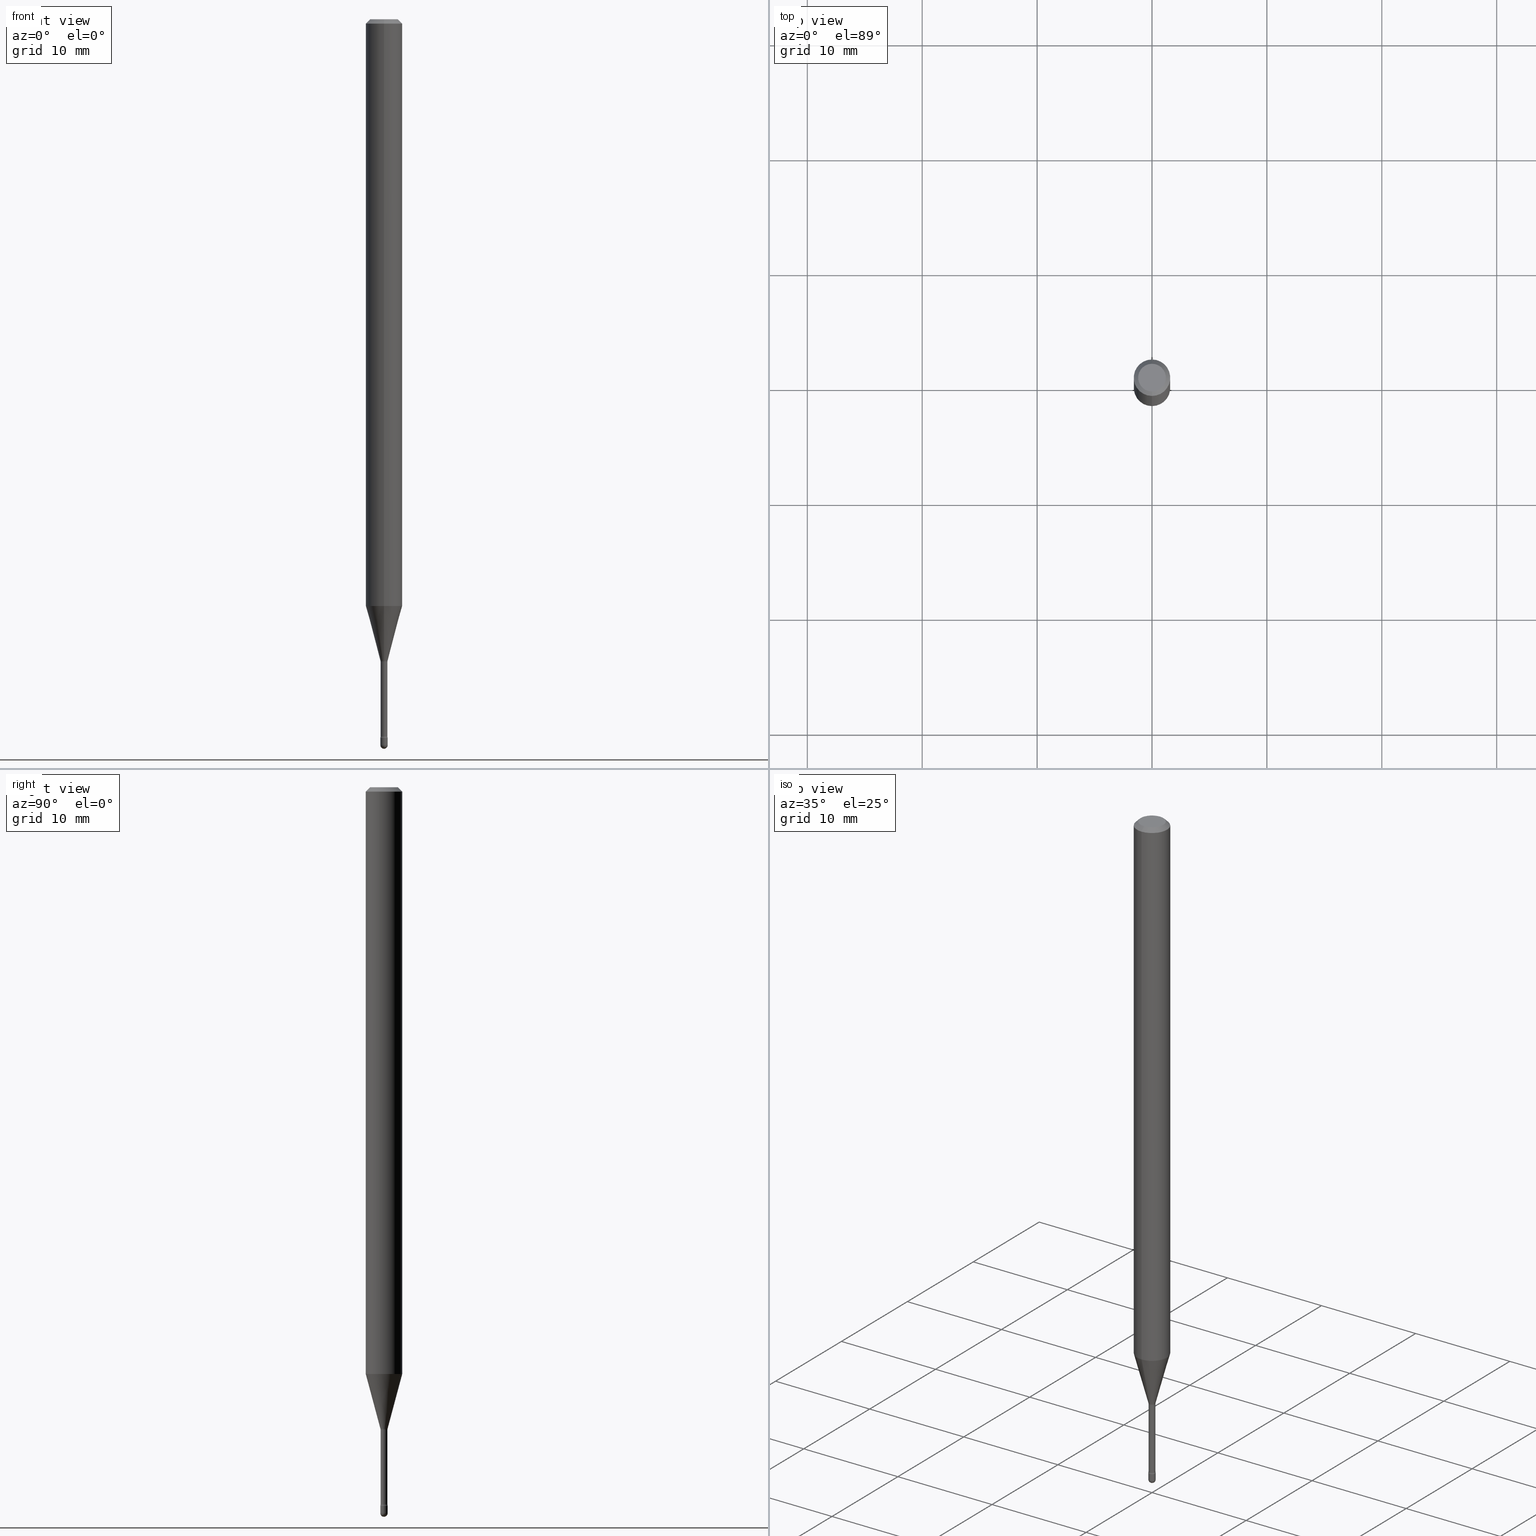
[diagram: canonical four-view strip — front | top / right | iso, engineering-drawing reading convention]
A machine part, canonical four-view strip (front | top / right | iso — engineering-drawing reading convention). The complete STEP part file that produces these views, byte-faithful:
ISO-10303-21;
HEADER;
FILE_DESCRIPTION (( 'STEP AP203' ),
    '1' );
FILE_NAME ('03889.STEP',
    '2024-04-09T20:58:36',
    ( '' ),
    ( '' ),
    'SwSTEP 2.0',
    'SolidWorks 2023',
    '' );
FILE_SCHEMA (( 'CONFIG_CONTROL_DESIGN' ));
ENDSEC;

DATA;
#1 = DIRECTION ( 'NONE',  ( -6.982962677686265922E-15, -1.000000000000000000, 3.491570948629923618E-15 ) ) ;
#2 = DIRECTION ( 'NONE',  ( -4.851104656540964275E-15, -0.7071067811865500152, -0.7071067811865450192 ) ) ;
#3 = CARTESIAN_POINT ( 'NONE',  ( 5.375229102395102351E-29, -7.674795921641710989E-15, -2.198092501787273001 ) ) ;
#4 = AXIS2_PLACEMENT_3D ( 'NONE', #314, #316, #226 ) ;
#5 = DIRECTION ( 'NONE',  ( -6.982962677686266711E-15, -1.000000000000000000, 3.491570948629923223E-15 ) ) ;
#6 = ORIENTED_EDGE ( 'NONE', *, *, #268, .T. ) ;
#7 = CYLINDRICAL_SURFACE ( 'NONE', #197, 0.01175000000000004340 ) ;
#8 = CARTESIAN_POINT ( 'NONE',  ( 6.114206494393579661E-29, -8.727937942858396428E-15, -2.500000000000000000 ) ) ;
#9 = EDGE_LOOP ( 'NONE', ( #137, #19, #102, #283 ) ) ;
#10 = DIRECTION ( 'NONE',  ( -2.445406232005474287E-29, 3.491570948629923223E-15, 1.000000000000000000 ) ) ;
#11 = VERTEX_POINT ( 'NONE', #191 ) ;
#12 = DIRECTION ( 'NONE',  ( 6.982962677686265922E-15, 1.000000000000000000, -3.483106191921935554E-15 ) ) ;
#13 = PERSON_AND_ORGANIZATION ( #154, #123 ) ;
#14 = AXIS2_PLACEMENT_3D ( 'NONE', #232, #323, #22 ) ;
#15 = VERTEX_POINT ( 'NONE', #67 ) ;
#16 = CIRCLE ( 'NONE', #150, 0.01249999999999996947 ) ;
#17 = CARTESIAN_POINT ( 'NONE',  ( 0.01250000000000000243, -8.728703347107835853E-17, 6.095220969744921493E-31 ) ) ;
#18 = APPLICATION_PROTOCOL_DEFINITION ( 'international standard', 'config_control_design', 1994, #78 ) ;
#19 = ORIENTED_EDGE ( 'NONE', *, *, #268, .F. ) ;
#20 = DIRECTION ( 'NONE',  ( -2.445406232005474287E-29, 3.491570948629923223E-15, 1.000000000000000000 ) ) ;
#21 = DATE_TIME_ROLE ( 'classification_date' ) ;
#22 = DIRECTION ( 'NONE',  ( -6.982962677686266711E-15, -1.000000000000000000, 3.491570948629923223E-15 ) ) ;
#23 = CARTESIAN_POINT ( 'NONE',  ( 4.440892098501121172E-16, 0.06249999999999995143, -0.01500000000000030129 ) ) ;
#24 = CC_DESIGN_DATE_AND_TIME_ASSIGNMENT ( #228, #21, ( #513 ) ) ;
#25 = CARTESIAN_POINT ( 'NONE',  ( -1.169113584055446105E-44, 1.669184350826100908E-30, 4.780733988912460139E-16 ) ) ;
#26 = TOROIDAL_SURFACE ( 'NONE', #158, 0.02674999999999999947, 0.01500000000000002373 ) ;
#27 = CARTESIAN_POINT ( 'NONE',  ( 3.316907271900976096E-16, 0.04749999999999999362, 3.181569158236497601E-17 ) ) ;
#28 = CIRCLE ( 'NONE', #159, 0.01250000000000000243 ) ;
#29 = EDGE_CURVE ( 'NONE', #141, #71, #548, .T. ) ;
#30 = SPHERICAL_SURFACE ( 'NONE', #254, 0.01249999999999996947 ) ;
#31 = AXIS2_PLACEMENT_3D ( 'NONE', #444, #307, #304 ) ;
#32 = CIRCLE ( 'NONE', #89, 0.01250000000000000243 ) ;
#33 = ORIENTED_EDGE ( 'NONE', *, *, #148, .F. ) ;
#34 = ORIENTED_EDGE ( 'NONE', *, *, #421, .T. ) ;
#35 = VERTEX_POINT ( 'NONE', #193 ) ;
#36 = DIRECTION ( 'NONE',  ( -1.807323732225325406E-15, -0.2588190451025175198, 0.9659258262890690894 ) ) ;
#37 = EDGE_CURVE ( 'NONE', #321, #559, #335, .T. ) ;
#38 = DIRECTION ( 'NONE',  ( 1.000000000000000000, -7.105427357601001070E-15, 4.926316605945468164E-29 ) ) ;
#39 = CIRCLE ( 'NONE', #31, 0.01249999999999996947 ) ;
#40 = MECHANICAL_CONTEXT ( 'NONE', #215, 'mechanical' ) ;
#41 = DIRECTION ( 'NONE',  ( -2.445406232005474287E-29, 3.491570948629923223E-15, 1.000000000000000000 ) ) ;
#42 = FACE_OUTER_BOUND ( 'NONE', #300, .T. ) ;
#43 = DIRECTION ( 'NONE',  ( 1.000000000000000000, 0.000000000000000000, 0.000000000000000000 ) ) ;
#44 = CARTESIAN_POINT ( 'NONE',  ( 5.384860654748895550E-29, -7.688153879032997927E-15, -2.201974787463810923 ) ) ;
#45 = CARTESIAN_POINT ( 'NONE',  ( 8.615330671097239935E-17, 0.01174999999999150856, -2.457316251501201698 ) ) ;
#46 = UNCERTAINTY_MEASURE_WITH_UNIT (LENGTH_MEASURE( 1.000000000000000082E-05 ), #430, 'distance_accuracy_value', 'NONE');
#47 = DIRECTION ( 'NONE',  ( -6.982962677686265922E-15, -1.000000000000000000, 4.370956789862821150E-15 ) ) ;
#48 = ORIENTED_EDGE ( 'NONE', *, *, #37, .F. ) ;
#49 = LINE ( 'NONE', #93, #385 ) ;
#50 = AXIS2_PLACEMENT_3D ( 'NONE', #115, #342, #516 ) ;
#51 = ORIENTED_EDGE ( 'NONE', *, *, #537, .F. ) ;
#52 = CONICAL_SURFACE ( 'NONE', #564, 0.01226111260566398187, 0.2617993877991495744 ) ;
#53 = DIRECTION ( 'NONE',  ( 1.000000000000000000, -6.982962677686294321E-15, 0.000000000000000000 ) ) ;
#54 = COORDINATED_UNIVERSAL_TIME_OFFSET ( 5, 0, .BEHIND. ) ;
#55 = EDGE_LOOP ( 'NONE', ( #6, #83, #259, #448 ) ) ;
#56 = FACE_OUTER_BOUND ( 'NONE', #224, .T. ) ;
#57 = ADVANCED_FACE ( 'NONE', ( #419 ), #423, .F. ) ;
#58 = COORDINATED_UNIVERSAL_TIME_OFFSET ( 5, 0, .BEHIND. ) ;
#59 = ORIENTED_EDGE ( 'NONE', *, *, #468, .F. ) ;
#60 = EDGE_LOOP ( 'NONE', ( #445, #520, #501, #374 ) ) ;
#61 = ORIENTED_EDGE ( 'NONE', *, *, #251, .F. ) ;
#62 = CIRCLE ( 'NONE', #112, 0.01250000000000000243 ) ;
#63 = CIRCLE ( 'NONE', #151, 0.06250000000000000000 ) ;
#64 = FACE_OUTER_BOUND ( 'NONE', #543, .T. ) ;
#65 = ADVANCED_FACE ( 'NONE', ( #111 ), #509, .T. ) ;
#66 = EDGE_CURVE ( 'NONE', #219, #35, #337, .T. ) ;
#67 = CARTESIAN_POINT ( 'NONE',  ( -4.364351673553912750E-16, -0.06250000000000005551, -0.01499999999999986587 ) ) ;
#68 = DIRECTION ( 'NONE',  ( -2.445406232005474287E-29, 3.491570948629923223E-15, 1.000000000000000000 ) ) ;
#69 = ADVANCED_FACE ( 'NONE', ( #152 ), #203, .T. ) ;
#70 = DIRECTION ( 'NONE',  ( 2.445406232005474287E-29, -3.491570948629923223E-15, -1.000000000000000000 ) ) ;
#71 = VERTEX_POINT ( 'NONE', #542 ) ;
#72 = DIRECTION ( 'NONE',  ( -6.982962677686265922E-15, -1.000000000000000000, 3.483106191921935554E-15 ) ) ;
#73 = AXIS2_PLACEMENT_3D ( 'NONE', #147, #70, #370 ) ;
#74 = CIRCLE ( 'NONE', #390, 0.04749999999999999362 ) ;
#75 = DIRECTION ( 'NONE',  ( -2.445406232005474287E-29, 3.491570948629923223E-15, 1.000000000000000000 ) ) ;
#76 = CC_DESIGN_APPROVAL ( #443, ( #513 ) ) ;
#77 = VERTEX_POINT ( 'NONE', #142 ) ;
#78 = APPLICATION_CONTEXT ( 'configuration controlled 3d designs of mechanical parts and assemblies' ) ;
#79 = ORIENTED_EDGE ( 'NONE', *, *, #301, .F. ) ;
#80 = AXIS2_PLACEMENT_3D ( 'NONE', #265, #493, #53 ) ;
#81 = ORIENTED_EDGE ( 'NONE', *, *, #251, .T. ) ;
#82 =( NAMED_UNIT ( * ) PLANE_ANGLE_UNIT ( ) SI_UNIT ( $, .RADIAN. ) );
#83 = ORIENTED_EDGE ( 'NONE', *, *, #301, .T. ) ;
#84 = LINE ( 'NONE', #256, #113 ) ;
#85 = LINE ( 'NONE', #353, #355 ) ;
#86 = FACE_OUTER_BOUND ( 'NONE', #60, .T. ) ;
#87 = AXIS2_PLACEMENT_3D ( 'NONE', #238, #378, #507 ) ;
#88 = AXIS2_PLACEMENT_3D ( 'NONE', #487, #349, #127 ) ;
#89 = AXIS2_PLACEMENT_3D ( 'NONE', #186, #289, #303 ) ;
#90 = DIRECTION ( 'NONE',  ( -2.445406232005474287E-29, 3.491570948629923223E-15, 1.000000000000000000 ) ) ;
#91 = FACE_OUTER_BOUND ( 'NONE', #533, .T. ) ;
#92 = ORIENTED_EDGE ( 'NONE', *, *, #242, .F. ) ;
#93 = CARTESIAN_POINT ( 'NONE',  ( 8.712044494296510252E-17, 0.01226111260565630572, -2.198092501787273001 ) ) ;
#94 = ORIENTED_EDGE ( 'NONE', *, *, #225, .F. ) ;
#95 = CARTESIAN_POINT ( 'NONE',  ( -8.204981146275976155E-17, -0.01175000000000768485, -2.201974787463810923 ) ) ;
#96 = CONICAL_SURFACE ( 'NONE', #460, 0.06250000000000000000, 0.7853981633974483900 ) ;
#97 = EDGE_CURVE ( 'NONE', #219, #190, #469, .T. ) ;
#98 = EDGE_LOOP ( 'NONE', ( #229, #416, #478, #132 ) ) ;
#99 = EDGE_CURVE ( 'NONE', #412, #498, #16, .T. ) ;
#100 = CARTESIAN_POINT ( 'NONE',  ( 6.009290239977978943E-29, -8.579673835752436969E-15, -2.457316251501201698 ) ) ;
#101 = VERTEX_POINT ( 'NONE', #333 ) ;
#102 = ORIENTED_EDGE ( 'NONE', *, *, #539, .T. ) ;
#103 = DIRECTION ( 'NONE',  ( -6.982962677686265922E-15, -1.000000000000000000, 3.491570948629922829E-15 ) ) ;
#104 = AXIS2_PLACEMENT_3D ( 'NONE', #135, #441, #273 ) ;
#105 =( GEOMETRIC_REPRESENTATION_CONTEXT ( 3 ) GLOBAL_UNCERTAINTY_ASSIGNED_CONTEXT ( ( #46 ) ) GLOBAL_UNIT_ASSIGNED_CONTEXT ( ( #430, #82, #261 ) ) REPRESENTATION_CONTEXT ( 'NONE', 'WORKASPACE' ) );
#106 = DIRECTION ( 'NONE',  ( -2.445468806185136597E-29, 3.491481338843145583E-15, 1.000000000000000000 ) ) ;
#107 = PERSON_AND_ORGANIZATION_ROLE ( 'design_supplier' ) ;
#108 = DIRECTION ( 'NONE',  ( -2.445406232005474287E-29, 3.491570948629923223E-15, 1.000000000000000000 ) ) ;
#109 =( LENGTH_UNIT ( ) NAMED_UNIT ( * ) SI_UNIT ( $, .METRE. ) );
#110 = CARTESIAN_POINT ( 'NONE',  ( 6.083103655385528181E-29, -8.685059830372324987E-15, -2.487500000000000266 ) ) ;
#111 = FACE_OUTER_BOUND ( 'NONE', #250, .T. ) ;
#112 = AXIS2_PLACEMENT_3D ( 'NONE', #363, #211, #184 ) ;
#113 = VECTOR ( 'NONE', #122, 39.37007874015748143 ) ;
#114 = CARTESIAN_POINT ( 'NONE',  ( 4.364351673553919652E-16, 0.06249999999999995143, -0.01500000000000030129 ) ) ;
#115 = CARTESIAN_POINT ( 'NONE',  ( 0.000000000000000000, 0.000000000000000000, 0.000000000000000000 ) ) ;
#116 = EDGE_LOOP ( 'NONE', ( #315, #354, #124, #51 ) ) ;
#117 = DATE_AND_TIME ( #163, #425 ) ;
#118 = ORIENTED_EDGE ( 'NONE', *, *, #334, .F. ) ;
#119 = DESIGN_CONTEXT ( 'detailed design', #78, 'design' ) ;
#120 = CC_DESIGN_PERSON_AND_ORGANIZATION_ASSIGNMENT ( #373, #418, ( #513 ) ) ;
#121 = AXIS2_PLACEMENT_3D ( 'NONE', #133, #538, #173 ) ;
#122 = DIRECTION ( 'NONE',  ( -2.445406232005474567E-29, 3.491570948629923618E-15, 1.000000000000000000 ) ) ;
#123 = ORGANIZATION ( 'UNSPECIFIED', 'UNSPECIFIED', '' ) ;
#124 = ORIENTED_EDGE ( 'NONE', *, *, #202, .F. ) ;
#125 = ADVANCED_FACE ( 'NONE', ( #240 ), #555, .T. ) ;
#126 = ORIENTED_EDGE ( 'NONE', *, *, #29, .T. ) ;
#127 = DIRECTION ( 'NONE',  ( -6.982962677686265133E-15, -1.000000000000000000, 3.491570948629924801E-15 ) ) ;
#128 = DIRECTION ( 'NONE',  ( -6.982962677686265922E-15, -1.000000000000000000, 0.000000000000000000 ) ) ;
#129 = CARTESIAN_POINT ( 'NONE',  ( -4.287811248607203282E-16, -0.06250000000000005551, -0.01499999999999986587 ) ) ;
#130 = AXIS2_PLACEMENT_3D ( 'NONE', #396, #530, #278 ) ;
#131 = AXIS2_PLACEMENT_3D ( 'NONE', #175, #41, #47 ) ;
#132 = ORIENTED_EDGE ( 'NONE', *, *, #421, .F. ) ;
#133 = CARTESIAN_POINT ( 'NONE',  ( 3.668109348008231504E-31, -5.237356422944913579E-17, -0.01500000000000008271 ) ) ;
#134 = ORIENTED_EDGE ( 'NONE', *, *, #405, .F. ) ;
#135 = CARTESIAN_POINT ( 'NONE',  ( 5.375229102395102351E-29, -7.674795921641710989E-15, -2.198092501787273001 ) ) ;
#136 = ADVANCED_FACE ( 'NONE', ( #64 ), #422, .F. ) ;
#137 = ORIENTED_EDGE ( 'NONE', *, *, #200, .F. ) ;
#138 = DIRECTION ( 'NONE',  ( -2.438088387897960049E-29, 3.491481338843145188E-15, 1.000000000000000000 ) ) ;
#139 = CIRCLE ( 'NONE', #104, 0.01226111260566398187 ) ;
#140 = CIRCLE ( 'NONE', #177, 0.01250000000000000243 ) ;
#141 = VERTEX_POINT ( 'NONE', #291 ) ;
#142 = CARTESIAN_POINT ( 'NONE',  ( 2.656048273965385606E-16, 0.01226111260565630572, -2.198092501787273001 ) ) ;
#143 = COORDINATED_UNIVERSAL_TIME_OFFSET ( 5, 0, .BEHIND. ) ;
#144 = EDGE_LOOP ( 'NONE', ( #237, #526, #34, #384, #432 ) ) ;
#145 = EDGE_CURVE ( 'NONE', #326, #219, #389, .T. ) ;
#146 = DIRECTION ( 'NONE',  ( -2.445468806185136877E-29, 3.491481338843145188E-15, 1.000000000000000000 ) ) ;
#147 = CARTESIAN_POINT ( 'NONE',  ( 3.668109348008231504E-31, -5.237356422944913579E-17, -0.01500000000000008271 ) ) ;
#148 = EDGE_CURVE ( 'NONE', #560, #343, #502, .T. ) ;
#149 = PERSON_AND_ORGANIZATION ( #154, #123 ) ;
#150 = AXIS2_PLACEMENT_3D ( 'NONE', #504, #375, #290 ) ;
#151 = AXIS2_PLACEMENT_3D ( 'NONE', #479, #344, #72 ) ;
#152 = FACE_OUTER_BOUND ( 'NONE', #562, .T. ) ;
#153 = DIRECTION ( 'NONE',  ( 6.982962677686265922E-15, 1.000000000000000000, -3.491570948629923618E-15 ) ) ;
#154 = PERSON ( 'UNSPECIFIED', 'UNSPECIFIED', 'UNSPECIFIED', ('UNSPECIFIED'), ('UNSPECIFIED'), ('UNSPECIFIED') ) ;
#155 = ORIENTED_EDGE ( 'NONE', *, *, #66, .T. ) ;
#156 = EDGE_CURVE ( 'NONE', #388, #35, #168, .T. ) ;
#157 = EDGE_CURVE ( 'NONE', #35, #388, #470, .T. ) ;
#158 = AXIS2_PLACEMENT_3D ( 'NONE', #287, #160, #519 ) ;
#159 = AXIS2_PLACEMENT_3D ( 'NONE', #408, #447, #236 ) ;
#160 = DIRECTION ( 'NONE',  ( -2.445406232005474287E-29, 3.491570948629923223E-15, 1.000000000000000000 ) ) ;
#161 = ORIENTED_EDGE ( 'NONE', *, *, #482, .F. ) ;
#162 = ADVANCED_FACE ( 'NONE', ( #377 ), #26, .F. ) ;
#163 = CALENDAR_DATE ( 2024, 9, 4 ) ;
#164 = ORIENTED_EDGE ( 'NONE', *, *, #404, .T. ) ;
#165 = APPROVAL_DATE_TIME ( #117, #510 ) ;
#166 = ORIENTED_EDGE ( 'NONE', *, *, #431, .F. ) ;
#167 = ADVANCED_FACE ( 'NONE', ( #547 ), #260, .T. ) ;
#168 = CIRCLE ( 'NONE', #234, 0.01250000000000000069 ) ;
#169 = DIRECTION ( 'NONE',  ( -2.445468806185136597E-29, 3.491481338843145583E-15, 1.000000000000000000 ) ) ;
#170 = AXIS2_PLACEMENT_3D ( 'NONE', #351, #266, #43 ) ;
#171 = DIRECTION ( 'NONE',  ( -2.445406232005474287E-29, 3.491570948629923223E-15, 1.000000000000000000 ) ) ;
#172 = CARTESIAN_POINT ( 'NONE',  ( -4.364351673553916201E-16, -0.06250000000000000000, 6.962965831806161907E-16 ) ) ;
#173 = DIRECTION ( 'NONE',  ( -6.982962677686265922E-15, -1.000000000000000000, 3.483106191921935554E-15 ) ) ;
#174 = EDGE_CURVE ( 'NONE', #204, #343, #379, .T. ) ;
#175 = CARTESIAN_POINT ( 'NONE',  ( 4.916729910035301383E-29, -7.020147037926026338E-15, -2.010598421515879419 ) ) ;
#176 = CARTESIAN_POINT ( 'NONE',  ( 1.900701818158805864E-16, 0.02674999999999231118, -2.201974787463810923 ) ) ;
#177 = AXIS2_PLACEMENT_3D ( 'NONE', #110, #106, #512 ) ;
#178 = CALENDAR_DATE ( 2024, 9, 4 ) ;
#179 = FACE_OUTER_BOUND ( 'NONE', #187, .T. ) ;
#180 = ORIENTED_EDGE ( 'NONE', *, *, #198, .T. ) ;
#181 = CARTESIAN_POINT ( 'NONE',  ( 5.384722867982933466E-29, -7.688351197524191767E-15, -2.201974787463810923 ) ) ;
#182 = APPROVAL_DATE_TIME ( #235, #484 ) ;
#183 = ORIENTED_EDGE ( 'NONE', *, *, #556, .T. ) ;
#184 = DIRECTION ( 'NONE',  ( 1.000000000000000000, -6.982962677686292743E-15, 0.000000000000000000 ) ) ;
#185 = APPROVAL_ROLE ( '' ) ;
#186 = CARTESIAN_POINT ( 'NONE',  ( 6.083103655385528181E-29, -8.685059830372324987E-15, -2.487500000000000266 ) ) ;
#187 = EDGE_LOOP ( 'NONE', ( #161, #475, #341, #517 ) ) ;
#188 = DIRECTION ( 'NONE',  ( -2.445406232005474567E-29, 3.491570948629923618E-15, 1.000000000000000000 ) ) ;
#189 = CIRCLE ( 'NONE', #121, 0.06250000000000000000 ) ;
#190 = VERTEX_POINT ( 'NONE', #95 ) ;
#191 = CARTESIAN_POINT ( 'NONE',  ( 8.348877145187204594E-17, 0.01174999999999231000, -2.201974787463810923 ) ) ;
#192 = DIRECTION ( 'NONE',  ( -6.982962677686265133E-15, -1.000000000000000000, 0.000000000000000000 ) ) ;
#193 = CARTESIAN_POINT ( 'NONE',  ( -8.728703347101793672E-17, -0.01250000000000857023, -2.462000000000000188 ) ) ;
#194 = CARTESIAN_POINT ( 'NONE',  ( 0.01250000000000000243, -8.727830476773153796E-15, -2.487500000000000266 ) ) ;
#195 = VECTOR ( 'NONE', #188, 39.37007874015748143 ) ;
#196 = CARTESIAN_POINT ( 'NONE',  ( -8.881784196995158866E-17, -0.01250000000000867084, -2.487500000000000266 ) ) ;
#197 = AXIS2_PLACEMENT_3D ( 'NONE', #450, #214, #395 ) ;
#198 = EDGE_CURVE ( 'NONE', #11, #190, #346, .T. ) ;
#199 = CARTESIAN_POINT ( 'NONE',  ( 6.009136475429369781E-29, -8.579894035337778343E-15, -2.457316251501201698 ) ) ;
#200 = EDGE_CURVE ( 'NONE', #77, #11, #558, .T. ) ;
#201 = DIRECTION ( 'NONE',  ( -1.000000000000000000, 6.982962677686265922E-15, -4.883557194083112340E-29 ) ) ;
#202 = EDGE_CURVE ( 'NONE', #387, #437, #62, .T. ) ;
#203 = CONICAL_SURFACE ( 'NONE', #73, 0.06250000000000000000, 0.7853981633974483900 ) ;
#204 = VERTEX_POINT ( 'NONE', #361 ) ;
#205 = ORIENTED_EDGE ( 'NONE', *, *, #556, .F. ) ;
#206 = CC_DESIGN_DATE_AND_TIME_ASSIGNMENT ( #366, #365, ( #284 ) ) ;
#207 = ORIENTED_EDGE ( 'NONE', *, *, #537, .T. ) ;
#208 = FACE_OUTER_BOUND ( 'NONE', #9, .T. ) ;
#209 = APPROVAL_STATUS ( 'not_yet_approved' ) ;
#210 = AXIS2_PLACEMENT_3D ( 'NONE', #356, #138, #352 ) ;
#211 = DIRECTION ( 'NONE',  ( -2.445468806185136597E-29, 3.491481338843145583E-15, 1.000000000000000000 ) ) ;
#212 = CARTESIAN_POINT ( 'NONE',  ( 2.023097840712358437E-45, -2.889451115726042936E-31, -8.274277560667344986E-17 ) ) ;
#213 = CC_DESIGN_PERSON_AND_ORGANIZATION_ASSIGNMENT ( #434, #227, ( #284 ) ) ;
#214 = DIRECTION ( 'NONE',  ( -2.445406232005474287E-29, 3.491570948629923223E-15, 1.000000000000000000 ) ) ;
#215 = APPLICATION_CONTEXT ( 'configuration controlled 3d designs of mechanical parts and assemblies' ) ;
#216 = APPLICATION_PROTOCOL_DEFINITION ( 'international standard', 'config_control_design', 1994, #215 ) ;
#217 = LINE ( 'NONE', #129, #338 ) ;
#218 = SPHERICAL_SURFACE ( 'NONE', #130, 0.01249999999999996947 ) ;
#219 = VERTEX_POINT ( 'NONE', #486 ) ;
#220 = DIRECTION ( 'NONE',  ( 7.105427357601000281E-15, 1.000000000000000000, 0.000000000000000000 ) ) ;
#221 = DIRECTION ( 'NONE',  ( -1.000000000000000000, 6.982962677686266711E-15, -4.883557194083112901E-29 ) ) ;
#222 = AXIS2_PLACEMENT_3D ( 'NONE', #100, #400, #525 ) ;
#223 = CIRCLE ( 'NONE', #276, 0.01174999999999999656 ) ;
#224 = EDGE_LOOP ( 'NONE', ( #386, #399, #456, #205 ) ) ;
#225 = EDGE_CURVE ( 'NONE', #15, #559, #189, .T. ) ;
#226 = DIRECTION ( 'NONE',  ( -6.982962677686265922E-15, -1.000000000000000000, 0.000000000000000000 ) ) ;
#227 = PERSON_AND_ORGANIZATION_ROLE ( 'creator' ) ;
#228 = DATE_AND_TIME ( #535, #247 ) ;
#229 = ORIENTED_EDGE ( 'NONE', *, *, #383, .F. ) ;
#230 = CARTESIAN_POINT ( 'NONE',  ( 3.668109348008231504E-31, -5.237356422944913579E-17, -0.01500000000000008271 ) ) ;
#231 = ORIENTED_EDGE ( 'NONE', *, *, #406, .T. ) ;
#232 = CARTESIAN_POINT ( 'NONE',  ( 2.023097840712358437E-45, -2.889451115726042936E-31, -8.274277560667344986E-17 ) ) ;
#233 = AXIS2_PLACEMENT_3D ( 'NONE', #550, #457, #103 ) ;
#234 = AXIS2_PLACEMENT_3D ( 'NONE', #285, #327, #461 ) ;
#235 = DATE_AND_TIME ( #500, #339 ) ;
#236 = DIRECTION ( 'NONE',  ( 1.000000000000000000, -6.982962677686292743E-15, 0.000000000000000000 ) ) ;
#237 = ORIENTED_EDGE ( 'NONE', *, *, #397, .F. ) ;
#238 = CARTESIAN_POINT ( 'NONE',  ( -1.867942516280477817E-16, -0.02675000000000861411, -2.457316251501201698 ) ) ;
#239 = PERSON_AND_ORGANIZATION_ROLE ( 'creator' ) ;
#240 = FACE_OUTER_BOUND ( 'NONE', #144, .T. ) ;
#241 = DIRECTION ( 'NONE',  ( 4.937700262164548042E-15, 0.7071067811865451302, -0.7071067811865499042 ) ) ;
#242 = EDGE_CURVE ( 'NONE', #219, #326, #563, .T. ) ;
#243 = ADVANCED_FACE ( 'NONE', ( #495 ), #312, .T. ) ;
#244 = CARTESIAN_POINT ( 'NONE',  ( 0.000000000000000000, 0.000000000000000000, 0.000000000000000000 ) ) ;
#245 = AXIS2_PLACEMENT_3D ( 'NONE', #499, #248, #381 ) ;
#246 = AXIS2_PLACEMENT_3D ( 'NONE', #3, #267, #534 ) ;
#247 = LOCAL_TIME ( 16, 58, 36.00000000000000000, #54 ) ;
#248 = DIRECTION ( 'NONE',  ( -2.445406232005474287E-29, 3.491570948629923223E-15, 1.000000000000000000 ) ) ;
#249 = DIRECTION ( 'NONE',  ( -6.982962677686267499E-15, -1.000000000000000000, 0.000000000000000000 ) ) ;
#250 = EDGE_LOOP ( 'NONE', ( #48, #270, #280, #166 ) ) ;
#251 = EDGE_CURVE ( 'NONE', #77, #362, #139, .T. ) ;
#252 = AXIS2_PLACEMENT_3D ( 'NONE', #263, #90, #310 ) ;
#253 = ADVANCED_FACE ( 'NONE', ( #42 ), #481, .F. ) ;
#254 = AXIS2_PLACEMENT_3D ( 'NONE', #382, #221, #452 ) ;
#255 = CC_DESIGN_PERSON_AND_ORGANIZATION_ASSIGNMENT ( #415, #358, ( #369 ) ) ;
#256 = CARTESIAN_POINT ( 'NONE',  ( 8.348877145181206786E-17, 0.01175000000000004340, 4.370474402448442708E-16 ) ) ;
#257 = ORIENTED_EDGE ( 'NONE', *, *, #406, .F. ) ;
#258 = LINE ( 'NONE', #438, #317 ) ;
#259 = ORIENTED_EDGE ( 'NONE', *, *, #404, .F. ) ;
#260 = CYLINDRICAL_SURFACE ( 'NONE', #50, 0.01250000000000000243 ) ;
#261 =( NAMED_UNIT ( * ) SI_UNIT ( $, .STERADIAN. ) SOLID_ANGLE_UNIT ( ) );
#262 = EDGE_CURVE ( 'NONE', #101, #15, #391, .T. ) ;
#263 = CARTESIAN_POINT ( 'NONE',  ( 4.916729910035301383E-29, -7.020147037926026338E-15, -2.010598421515879419 ) ) ;
#264 = AXIS2_PLACEMENT_3D ( 'NONE', #176, #38, #220 ) ;
#265 = CARTESIAN_POINT ( 'NONE',  ( 6.020744200827806517E-29, -8.596027056231825938E-15, -2.462000000000000188 ) ) ;
#266 = DIRECTION ( 'NONE',  ( 0.000000000000000000, 0.000000000000000000, 1.000000000000000000 ) ) ;
#267 = DIRECTION ( 'NONE',  ( -2.445406232005474287E-29, 3.491570948629923223E-15, 1.000000000000000000 ) ) ;
#268 = EDGE_CURVE ( 'NONE', #362, #77, #541, .T. ) ;
#269 = PERSON_AND_ORGANIZATION ( #154, #123 ) ;
#270 = ORIENTED_EDGE ( 'NONE', *, *, #405, .T. ) ;
#271 = DIRECTION ( 'NONE',  ( -2.445406232005473726E-29, 3.491570948629923618E-15, 1.000000000000000000 ) ) ;
#272 = EDGE_LOOP ( 'NONE', ( #296, #409, #360, #561 ) ) ;
#273 = DIRECTION ( 'NONE',  ( -6.982962677686265133E-15, -1.000000000000000000, 0.000000000000000000 ) ) ;
#274 = ADVANCED_FACE ( 'NONE', ( #350 ), #292, .F. ) ;
#275 = VECTOR ( 'NONE', #146, 39.37007874015748143 ) ;
#276 = AXIS2_PLACEMENT_3D ( 'NONE', #553, #392, #299 ) ;
#277 = ORIENTED_EDGE ( 'NONE', *, *, #348, .T. ) ;
#278 = DIRECTION ( 'NONE',  ( 6.982962677686266711E-15, 1.000000000000000000, 0.000000000000000000 ) ) ;
#279 = APPROVAL_STATUS ( 'not_yet_approved' ) ;
#280 = ORIENTED_EDGE ( 'NONE', *, *, #262, .T. ) ;
#281 = DIRECTION ( 'NONE',  ( 1.000000000000000000, -6.982962677686267499E-15, 4.876176775795936353E-29 ) ) ;
#282 = APPROVAL_STATUS ( 'not_yet_approved' ) ;
#283 = ORIENTED_EDGE ( 'NONE', *, *, #497, .T. ) ;
#284 = PRODUCT_DEFINITION ( 'UNKNOWN', '', #462, #119 ) ;
#285 = CARTESIAN_POINT ( 'NONE',  ( 6.020590143197478927E-29, -8.596247675526871157E-15, -2.462000000000000188 ) ) ;
#286 = AXIS2_PLACEMENT_3D ( 'NONE', #417, #20, #192 ) ;
#287 = CARTESIAN_POINT ( 'NONE',  ( 5.384860654748895550E-29, -7.688153879032997927E-15, -2.201974787463810923 ) ) ;
#288 = SHAPE_DEFINITION_REPRESENTATION ( #429, #551 ) ;
#289 = DIRECTION ( 'NONE',  ( -2.445468806185136597E-29, 3.491481338843145583E-15, 1.000000000000000000 ) ) ;
#290 = DIRECTION ( 'NONE',  ( 6.982962677686265922E-15, 1.000000000000000000, 0.000000000000000000 ) ) ;
#291 = CARTESIAN_POINT ( 'NONE',  ( -3.773273898774340269E-16, -0.04749999999999999362, 8.310684445324788698E-17 ) ) ;
#292 = TOROIDAL_SURFACE ( 'NONE', #222, 0.02675000000000003417, 0.01499999999999994393 ) ;
#293 = AXIS2_PLACEMENT_3D ( 'NONE', #25, #108, #466 ) ;
#294 = ORIENTED_EDGE ( 'NONE', *, *, #539, .F. ) ;
#295 = CC_DESIGN_PERSON_AND_ORGANIZATION_ASSIGNMENT ( #13, #239, ( #462 ) ) ;
#296 = ORIENTED_EDGE ( 'NONE', *, *, #145, .F. ) ;
#297 = AXIS2_PLACEMENT_3D ( 'NONE', #181, #439, #128 ) ;
#298 = CIRCLE ( 'NONE', #131, 0.06250000000000000000 ) ;
#299 = DIRECTION ( 'NONE',  ( -6.982962677686265922E-15, -1.000000000000000000, 0.000000000000000000 ) ) ;
#300 = EDGE_LOOP ( 'NONE', ( #402, #453 ) ) ;
#301 = EDGE_CURVE ( 'NONE', #77, #321, #49, .T. ) ;
#302 = DIRECTION ( 'NONE',  ( 1.000000000000000000, -7.105427357601001070E-15, 4.926316605945468164E-29 ) ) ;
#303 = DIRECTION ( 'NONE',  ( 1.000000000000000000, -6.982962677686292743E-15, 0.000000000000000000 ) ) ;
#304 = DIRECTION ( 'NONE',  ( -7.105427357601001070E-15, -1.000000000000000000, 0.000000000000000000 ) ) ;
#305 = APPROVAL_ROLE ( '' ) ;
#306 = DIRECTION ( 'NONE',  ( 1.839019923739595582E-15, 0.2588190451025242922, 0.9659258262890673130 ) ) ;
#307 = DIRECTION ( 'NONE',  ( -1.000000000000000000, 7.105427357601001070E-15, -4.926315508542082329E-29 ) ) ;
#308 = CARTESIAN_POINT ( 'NONE',  ( 4.440892098501117228E-16, 0.06249999999999298478, -2.010598421515879863 ) ) ;
#309 = ADVANCED_FACE ( 'NONE', ( #86 ), #7, .T. ) ;
#310 = DIRECTION ( 'NONE',  ( -6.982962677686265922E-15, -1.000000000000000000, 4.370956789862821150E-15 ) ) ;
#311 = ORIENTED_EDGE ( 'NONE', *, *, #157, .T. ) ;
#312 = PLANE ( 'NONE',  #210 ) ;
#313 = ORIENTED_EDGE ( 'NONE', *, *, #397, .T. ) ;
#314 = CARTESIAN_POINT ( 'NONE',  ( 6.009136475429369781E-29, -8.579894035337778343E-15, -2.457316251501201698 ) ) ;
#315 = ORIENTED_EDGE ( 'NONE', *, *, #99, .F. ) ;
#316 = DIRECTION ( 'NONE',  ( -2.445406232005474287E-29, 3.491570948629923223E-15, 1.000000000000000000 ) ) ;
#317 = VECTOR ( 'NONE', #36, 39.37007874015748854 ) ;
#318 = TOROIDAL_SURFACE ( 'NONE', #528, 0.02674999999999999947, 0.01500000000000002373 ) ;
#319 = APPROVAL_PERSON_ORGANIZATION ( #320, #443, #455 ) ;
#320 = PERSON_AND_ORGANIZATION ( #154, #123 ) ;
#321 = VERTEX_POINT ( 'NONE', #308 ) ;
#322 = ADVANCED_FACE ( 'NONE', ( #91 ), #549, .T. ) ;
#323 = DIRECTION ( 'NONE',  ( -2.445406232005474287E-29, 3.491570948629923223E-15, 1.000000000000000000 ) ) ;
#324 = ADVANCED_FACE ( 'NONE', ( #489 ), #218, .T. ) ;
#325 = CALENDAR_DATE ( 2024, 9, 4 ) ;
#326 = VERTEX_POINT ( 'NONE', #45 ) ;
#327 = DIRECTION ( 'NONE',  ( -2.445406232005474287E-29, 3.491570948629923223E-15, 1.000000000000000000 ) ) ;
#328 = PERSON_AND_ORGANIZATION ( #154, #123 ) ;
#329 = ADVANCED_FACE ( 'NONE', ( #56 ), #96, .T. ) ;
#330 = CARTESIAN_POINT ( 'NONE',  ( -8.204981146281392178E-17, -0.01175000000000004340, 5.190993575376478064E-16 ) ) ;
#331 = FACE_OUTER_BOUND ( 'NONE', #55, .T. ) ;
#332 = AXIS2_PLACEMENT_3D ( 'NONE', #420, #169, #474 ) ;
#333 = CARTESIAN_POINT ( 'NONE',  ( -4.364351673553424642E-16, -0.06250000000000702216, -2.010598421515879419 ) ) ;
#334 = EDGE_CURVE ( 'NONE', #326, #388, #485, .T. ) ;
#335 = LINE ( 'NONE', #467, #195 ) ;
#336 = CARTESIAN_POINT ( 'NONE',  ( 5.375229102395102351E-29, -7.674795921641710989E-15, -2.198092501787273001 ) ) ;
#337 = CIRCLE ( 'NONE', #87, 0.01499999999999994740 ) ;
#338 = VECTOR ( 'NONE', #2, 39.37007874015748143 ) ;
#339 = LOCAL_TIME ( 16, 58, 36.00000000000000000, #58 ) ;
#340 = EDGE_CURVE ( 'NONE', #141, #15, #217, .T. ) ;
#341 = ORIENTED_EDGE ( 'NONE', *, *, #97, .T. ) ;
#342 = DIRECTION ( 'NONE',  ( -2.445468806185136597E-29, 3.491481338843145583E-15, 1.000000000000000000 ) ) ;
#343 = VERTEX_POINT ( 'NONE', #359 ) ;
#344 = DIRECTION ( 'NONE',  ( -2.445406232005474287E-29, 3.491570948629923223E-15, 1.000000000000000000 ) ) ;
#345 = ORIENTED_EDGE ( 'NONE', *, *, #468, .T. ) ;
#346 = CIRCLE ( 'NONE', #297, 0.01174999999999999656 ) ;
#347 = CC_DESIGN_APPROVAL ( #484, ( #462 ) ) ;
#348 = EDGE_CURVE ( 'NONE', #362, #101, #258, .T. ) ;
#349 = DIRECTION ( 'NONE',  ( -2.445406232005474287E-29, 3.491570948629923223E-15, 1.000000000000000000 ) ) ;
#350 = FACE_OUTER_BOUND ( 'NONE', #488, .T. ) ;
#351 = CARTESIAN_POINT ( 'NONE',  ( 0.000000000000000000, 0.000000000000000000, 0.000000000000000000 ) ) ;
#352 = DIRECTION ( 'NONE',  ( 1.000000000000000000, -6.982962677686265922E-15, 4.876176775795935793E-29 ) ) ;
#353 = CARTESIAN_POINT ( 'NONE',  ( -0.01250000000000000243, 8.881784197001254049E-17, -6.148668862818633278E-31 ) ) ;
#354 = ORIENTED_EDGE ( 'NONE', *, *, #383, .T. ) ;
#355 = VECTOR ( 'NONE', #442, 39.37007874015748143 ) ;
#356 = CARTESIAN_POINT ( 'NONE',  ( 6.020744200827806517E-29, -8.596027056231825938E-15, -2.462000000000000188 ) ) ;
#357 = CIRCLE ( 'NONE', #440, 0.01500000000000001853 ) ;
#358 = PERSON_AND_ORGANIZATION_ROLE ( 'design_owner' ) ;
#359 = CARTESIAN_POINT ( 'NONE',  ( 0.01250000000000000069, -8.683314089702904272E-15, -2.462000000000000188 ) ) ;
#360 = ORIENTED_EDGE ( 'NONE', *, *, #156, .T. ) ;
#361 = CARTESIAN_POINT ( 'NONE',  ( -0.01250000000000000069, -8.551725601332063255E-15, -2.462000000000000188 ) ) ;
#362 = VERTEX_POINT ( 'NONE', #398 ) ;
#363 = CARTESIAN_POINT ( 'NONE',  ( 6.083103655385528181E-29, -8.685059830372324987E-15, -2.487500000000000266 ) ) ;
#364 = ADVANCED_FACE ( 'NONE', ( #208 ), #318, .F. ) ;
#365 = DATE_TIME_ROLE ( 'creation_date' ) ;
#366 = DATE_AND_TIME ( #178, #451 ) ;
#367 = ORIENTED_EDGE ( 'NONE', *, *, #37, .T. ) ;
#368 = AXIS2_PLACEMENT_3D ( 'NONE', #244, #464, #281 ) ;
#369 = PRODUCT ( '03889', '03889', '', ( #40 ) ) ;
#370 = DIRECTION ( 'NONE',  ( 6.982962677686265922E-15, 1.000000000000000000, -3.483106191921935554E-15 ) ) ;
#371 = VECTOR ( 'NONE', #241, 39.37007874015748143 ) ;
#372 = MANIFOLD_SOLID_BREP ( 'Body-Move/Copy2[1]', #459 ) ;
#373 = PERSON_AND_ORGANIZATION ( #154, #123 ) ;
#374 = ORIENTED_EDGE ( 'NONE', *, *, #97, .F. ) ;
#375 = DIRECTION ( 'NONE',  ( 1.000000000000000000, -6.982962677686265922E-15, 4.883557194083112340E-29 ) ) ;
#376 = ADVANCED_FACE ( 'NONE', ( #179 ), #565, .T. ) ;
#377 = FACE_OUTER_BOUND ( 'NONE', #536, .T. ) ;
#378 = DIRECTION ( 'NONE',  ( -1.000000000000000000, 6.982962677686265922E-15, -4.883557194083112340E-29 ) ) ;
#379 = CIRCLE ( 'NONE', #80, 0.01250000000000000069 ) ;
#380 = FACE_OUTER_BOUND ( 'NONE', #98, .T. ) ;
#381 = DIRECTION ( 'NONE',  ( -6.982962677686266711E-15, -1.000000000000000000, 3.491570948629923618E-15 ) ) ;
#382 = CARTESIAN_POINT ( 'NONE',  ( 6.083103655385528181E-29, -8.685059830372324987E-15, -2.487500000000000266 ) ) ;
#383 = EDGE_CURVE ( 'NONE', #412, #437, #39, .T. ) ;
#384 = ORIENTED_EDGE ( 'NONE', *, *, #148, .T. ) ;
#385 = VECTOR ( 'NONE', #306, 39.37007874015748854 ) ;
#386 = ORIENTED_EDGE ( 'NONE', *, *, #29, .F. ) ;
#387 = VERTEX_POINT ( 'NONE', #524 ) ;
#388 = VERTEX_POINT ( 'NONE', #480 ) ;
#389 = CIRCLE ( 'NONE', #476, 0.01175000000000008850 ) ;
#390 = AXIS2_PLACEMENT_3D ( 'NONE', #212, #393, #5 ) ;
#391 = LINE ( 'NONE', #172, #424 ) ;
#392 = DIRECTION ( 'NONE',  ( -2.445406232005474287E-29, 3.491570948629923223E-15, 1.000000000000000000 ) ) ;
#393 = DIRECTION ( 'NONE',  ( -2.445406232005474287E-29, 3.491570948629923223E-15, 1.000000000000000000 ) ) ;
#394 = COORDINATED_UNIVERSAL_TIME_OFFSET ( 5, 0, .BEHIND. ) ;
#395 = DIRECTION ( 'NONE',  ( -6.982962677686265133E-15, -1.000000000000000000, 3.491570948629924801E-15 ) ) ;
#396 = CARTESIAN_POINT ( 'NONE',  ( 6.083103655385528181E-29, -8.685059830372324987E-15, -2.487500000000000266 ) ) ;
#397 = EDGE_CURVE ( 'NONE', #387, #204, #85, .T. ) ;
#398 = CARTESIAN_POINT ( 'NONE',  ( -8.561889171220642469E-17, -0.01226111260567165628, -2.198092501787273001 ) ) ;
#399 = ORIENTED_EDGE ( 'NONE', *, *, #340, .T. ) ;
#400 = DIRECTION ( 'NONE',  ( -2.445406232005474287E-29, 3.491570948629923223E-15, 1.000000000000000000 ) ) ;
#401 = APPROVAL_PERSON_ORGANIZATION ( #269, #510, #305 ) ;
#402 = ORIENTED_EDGE ( 'NONE', *, *, #157, .F. ) ;
#403 = DIRECTION ( 'NONE',  ( -6.982962677686265133E-15, -1.000000000000000000, 0.000000000000000000 ) ) ;
#404 = EDGE_CURVE ( 'NONE', #101, #321, #503, .T. ) ;
#405 = EDGE_CURVE ( 'NONE', #321, #101, #298, .T. ) ;
#406 = EDGE_CURVE ( 'NONE', #71, #141, #74, .T. ) ;
#407 = EDGE_CURVE ( 'NONE', #560, #498, #28, .T. ) ;
#408 = CARTESIAN_POINT ( 'NONE',  ( 6.083103655385528181E-29, -8.685059830372324987E-15, -2.487500000000000266 ) ) ;
#409 = ORIENTED_EDGE ( 'NONE', *, *, #334, .T. ) ;
#410 = PRODUCT_RELATED_PRODUCT_CATEGORY ( 'detail', '', ( #369 ) ) ;
#411 = DIRECTION ( 'NONE',  ( 2.445406232005474287E-29, -3.491570948629923223E-15, -1.000000000000000000 ) ) ;
#412 = VERTEX_POINT ( 'NONE', #8 ) ;
#413 = AXIS2_PLACEMENT_3D ( 'NONE', #27, #544, #153 ) ;
#414 = DIRECTION ( 'NONE',  ( -2.445406232005474567E-29, 3.491570948629923618E-15, 1.000000000000000000 ) ) ;
#415 = PERSON_AND_ORGANIZATION ( #154, #123 ) ;
#416 = ORIENTED_EDGE ( 'NONE', *, *, #99, .T. ) ;
#417 = CARTESIAN_POINT ( 'NONE',  ( 6.020590143197478927E-29, -8.596247675526871157E-15, -2.462000000000000188 ) ) ;
#418 = PERSON_AND_ORGANIZATION_ROLE ( 'classification_officer' ) ;
#419 = FACE_OUTER_BOUND ( 'NONE', #272, .T. ) ;
#420 = CARTESIAN_POINT ( 'NONE',  ( 6.020744200827806517E-29, -8.596027056231825938E-15, -2.462000000000000188 ) ) ;
#421 = EDGE_CURVE ( 'NONE', #437, #560, #32, .T. ) ;
#422 = PLANE ( 'NONE',  #413 ) ;
#423 = TOROIDAL_SURFACE ( 'NONE', #245, 0.02675000000000003417, 0.01499999999999994393 ) ;
#424 = VECTOR ( 'NONE', #446, 39.37007874015748143 ) ;
#425 = LOCAL_TIME ( 16, 58, 36.00000000000000000, #394 ) ;
#426 = FACE_OUTER_BOUND ( 'NONE', #494, .T. ) ;
#427 = DIRECTION ( 'NONE',  ( -6.982962677686265922E-15, -1.000000000000000000, 0.000000000000000000 ) ) ;
#428 = DIRECTION ( 'NONE',  ( -6.982962677686265133E-15, -1.000000000000000000, 0.000000000000000000 ) ) ;
#429 = PRODUCT_DEFINITION_SHAPE ( 'NONE', 'NONE',  #284 ) ;
#430 =( CONVERSION_BASED_UNIT ( 'INCH', #472 ) LENGTH_UNIT ( ) NAMED_UNIT ( #490 ) );
#431 = EDGE_CURVE ( 'NONE', #559, #15, #63, .T. ) ;
#432 = ORIENTED_EDGE ( 'NONE', *, *, #174, .F. ) ;
#433 = AXIS2_PLACEMENT_3D ( 'NONE', #527, #10, #403 ) ;
#434 = PERSON_AND_ORGANIZATION ( #154, #123 ) ;
#435 = CC_DESIGN_SECURITY_CLASSIFICATION ( #513, ( #462 ) ) ;
#436 = EDGE_LOOP ( 'NONE', ( #345, #473 ) ) ;
#437 = VERTEX_POINT ( 'NONE', #196 ) ;
#438 = CARTESIAN_POINT ( 'NONE',  ( -8.561889171220642469E-17, -0.01226111260567165628, -2.198092501787273001 ) ) ;
#439 = DIRECTION ( 'NONE',  ( -2.445406232005474287E-29, 3.491570948629923223E-15, 1.000000000000000000 ) ) ;
#440 = AXIS2_PLACEMENT_3D ( 'NONE', #465, #201, #249 ) ;
#441 = DIRECTION ( 'NONE',  ( -2.445406232005474287E-29, 3.491570948629923223E-15, 1.000000000000000000 ) ) ;
#442 = DIRECTION ( 'NONE',  ( -2.445468806185136877E-29, 3.491481338843145188E-15, 1.000000000000000000 ) ) ;
#443 = APPROVAL ( #279, 'UNSPECIFIED' ) ;
#444 = CARTESIAN_POINT ( 'NONE',  ( 6.083103655385528181E-29, -8.685059830372324987E-15, -2.487500000000000266 ) ) ;
#445 = ORIENTED_EDGE ( 'NONE', *, *, #242, .T. ) ;
#446 = DIRECTION ( 'NONE',  ( -2.445406232005474567E-29, 3.491570948629923618E-15, 1.000000000000000000 ) ) ;
#447 = DIRECTION ( 'NONE',  ( -2.445468806185136597E-29, 3.491481338843145583E-15, 1.000000000000000000 ) ) ;
#448 = ORIENTED_EDGE ( 'NONE', *, *, #348, .F. ) ;
#449 = AXIS2_PLACEMENT_3D ( 'NONE', #566, #271, #1 ) ;
#450 = CARTESIAN_POINT ( 'NONE',  ( -1.169113584055446105E-44, 1.669184350826100908E-30, 4.780733988912460139E-16 ) ) ;
#451 = LOCAL_TIME ( 16, 58, 36.00000000000000000, #531 ) ;
#452 = DIRECTION ( 'NONE',  ( 6.982962677686266711E-15, 1.000000000000000000, 0.000000000000000000 ) ) ;
#453 = ORIENTED_EDGE ( 'NONE', *, *, #156, .F. ) ;
#454 = CARTESIAN_POINT ( 'NONE',  ( 1.900701818158870945E-16, 0.02674999999999145422, -2.457316251501201698 ) ) ;
#455 = APPROVAL_ROLE ( '' ) ;
#456 = ORIENTED_EDGE ( 'NONE', *, *, #225, .T. ) ;
#457 = DIRECTION ( 'NONE',  ( -2.445406232005474287E-29, 3.491570948629923223E-15, 1.000000000000000000 ) ) ;
#458 = EDGE_LOOP ( 'NONE', ( #207, #313, #59, #33, #492 ) ) ;
#459 = CLOSED_SHELL ( 'NONE', ( #167, #324, #243, #518, #125 ) ) ;
#460 = AXIS2_PLACEMENT_3D ( 'NONE', #230, #411, #12 ) ;
#461 = DIRECTION ( 'NONE',  ( -6.982962677686265133E-15, -1.000000000000000000, 0.000000000000000000 ) ) ;
#462 = PRODUCT_DEFINITION_FORMATION_WITH_SPECIFIED_SOURCE ( 'ANY', '', #369, .NOT_KNOWN. ) ;
#463 = APPROVAL_DATE_TIME ( #505, #443 ) ;
#464 = DIRECTION ( 'NONE',  ( -2.445468806185136597E-29, 3.491481338843145583E-15, 1.000000000000000000 ) ) ;
#465 = CARTESIAN_POINT ( 'NONE',  ( -1.867942516280537721E-16, -0.02675000000000768777, -2.201974787463810923 ) ) ;
#466 = DIRECTION ( 'NONE',  ( -6.982962677686265922E-15, -1.000000000000000000, 3.491570948629922829E-15 ) ) ;
#467 = CARTESIAN_POINT ( 'NONE',  ( 4.440892098500625669E-16, 0.06250000000000000000, 2.598502146018758371E-16 ) ) ;
#468 = EDGE_CURVE ( 'NONE', #343, #204, #477, .T. ) ;
#469 = LINE ( 'NONE', #330, #521 ) ;
#470 = CIRCLE ( 'NONE', #286, 0.01250000000000000069 ) ;
#471 = LOCAL_TIME ( 16, 58, 36.00000000000000000, #143 ) ;
#472 = LENGTH_MEASURE_WITH_UNIT ( LENGTH_MEASURE( 0.02539999999999999897 ), #109 );
#473 = ORIENTED_EDGE ( 'NONE', *, *, #174, .T. ) ;
#474 = DIRECTION ( 'NONE',  ( 1.000000000000000000, -6.982962677686294321E-15, 0.000000000000000000 ) ) ;
#475 = ORIENTED_EDGE ( 'NONE', *, *, #145, .T. ) ;
#476 = AXIS2_PLACEMENT_3D ( 'NONE', #199, #75, #427 ) ;
#477 = CIRCLE ( 'NONE', #332, 0.01250000000000000069 ) ;
#478 = ORIENTED_EDGE ( 'NONE', *, *, #407, .F. ) ;
#479 = CARTESIAN_POINT ( 'NONE',  ( 3.668109348008231504E-31, -5.237356422944913579E-17, -0.01500000000000008271 ) ) ;
#480 = CARTESIAN_POINT ( 'NONE',  ( 8.881784197007250624E-17, 0.01249999999999137738, -2.462000000000000188 ) ) ;
#481 = PLANE ( 'NONE',  #449 ) ;
#482 = EDGE_CURVE ( 'NONE', #326, #11, #84, .T. ) ;
#483 = CLOSED_SHELL ( 'NONE', ( #162, #309, #57, #329, #514, #554, #322, #65, #69, #136, #253, #274, #376, #364 ) ) ;
#484 = APPROVAL ( #282, 'UNSPECIFIED' ) ;
#485 = CIRCLE ( 'NONE', #511, 0.01499999999999994740 ) ;
#486 = CARTESIAN_POINT ( 'NONE',  ( -8.204981146275414092E-17, -0.01175000000000866844, -2.457316251501201698 ) ) ;
#487 = CARTESIAN_POINT ( 'NONE',  ( -1.169113584055446105E-44, 1.669184350826100908E-30, 4.780733988912460139E-16 ) ) ;
#488 = EDGE_LOOP ( 'NONE', ( #118, #92, #155, #311 ) ) ;
#489 = FACE_OUTER_BOUND ( 'NONE', #116, .T. ) ;
#490 = DIMENSIONAL_EXPONENTS ( 1.000000000000000000, 0.000000000000000000, 0.000000000000000000, 0.000000000000000000, 0.000000000000000000, 0.000000000000000000, 0.000000000000000000 ) ;
#491 = DIRECTION ( 'NONE',  ( 7.105427357600997914E-15, 1.000000000000000000, 0.000000000000000000 ) ) ;
#492 = ORIENTED_EDGE ( 'NONE', *, *, #407, .T. ) ;
#493 = DIRECTION ( 'NONE',  ( -2.445468806185136597E-29, 3.491481338843145583E-15, 1.000000000000000000 ) ) ;
#494 = EDGE_LOOP ( 'NONE', ( #164, #367, #94, #529 ) ) ;
#495 = FACE_OUTER_BOUND ( 'NONE', #436, .T. ) ;
#496 = CC_DESIGN_APPROVAL ( #510, ( #284 ) ) ;
#497 = EDGE_CURVE ( 'NONE', #190, #11, #223, .T. ) ;
#498 = VERTEX_POINT ( 'NONE', #508 ) ;
#499 = CARTESIAN_POINT ( 'NONE',  ( 6.009290239977978943E-29, -8.579673835752436969E-15, -2.457316251501201698 ) ) ;
#500 = CALENDAR_DATE ( 2024, 9, 4 ) ;
#501 = ORIENTED_EDGE ( 'NONE', *, *, #497, .F. ) ;
#502 = LINE ( 'NONE', #17, #275 ) ;
#503 = CIRCLE ( 'NONE', #252, 0.06250000000000000000 ) ;
#504 = CARTESIAN_POINT ( 'NONE',  ( 6.083103655385528181E-29, -8.685059830372324987E-15, -2.487500000000000266 ) ) ;
#505 = DATE_AND_TIME ( #325, #471 ) ;
#506 = CYLINDRICAL_SURFACE ( 'NONE', #293, 0.06250000000000000000 ) ;
#507 = DIRECTION ( 'NONE',  ( -6.982962677686263555E-15, -1.000000000000000000, 0.000000000000000000 ) ) ;
#508 = CARTESIAN_POINT ( 'NONE',  ( 8.728703347113906385E-17, 0.01249999999999130106, -2.487500000000000266 ) ) ;
#509 = CYLINDRICAL_SURFACE ( 'NONE', #233, 0.06250000000000000000 ) ;
#510 = APPROVAL ( #209, 'UNSPECIFIED' ) ;
#511 = AXIS2_PLACEMENT_3D ( 'NONE', #454, #302, #491 ) ;
#512 = DIRECTION ( 'NONE',  ( 1.000000000000000000, -6.982962677686292743E-15, 0.000000000000000000 ) ) ;
#513 = SECURITY_CLASSIFICATION ( '', '', #546 ) ;
#514 = ADVANCED_FACE ( 'NONE', ( #426 ), #506, .T. ) ;
#515 = ORIENTED_EDGE ( 'NONE', *, *, #431, .T. ) ;
#516 = DIRECTION ( 'NONE',  ( 1.000000000000000000, -6.982962677686267499E-15, 4.876176775795936353E-29 ) ) ;
#517 = ORIENTED_EDGE ( 'NONE', *, *, #198, .F. ) ;
#518 = ADVANCED_FACE ( 'NONE', ( #380 ), #30, .T. ) ;
#519 = DIRECTION ( 'NONE',  ( -6.982962677686266711E-15, -1.000000000000000000, 3.491570948629923618E-15 ) ) ;
#520 = ORIENTED_EDGE ( 'NONE', *, *, #482, .T. ) ;
#521 = VECTOR ( 'NONE', #414, 39.37007874015748143 ) ;
#522 = ORIENTED_EDGE ( 'NONE', *, *, #340, .F. ) ;
#523 = APPROVAL_PERSON_ORGANIZATION ( #328, #484, #185 ) ;
#524 = CARTESIAN_POINT ( 'NONE',  ( -0.01250000000000000243, -8.551725601332063255E-15, -2.487500000000000266 ) ) ;
#525 = DIRECTION ( 'NONE',  ( -6.982962677686266711E-15, -1.000000000000000000, 3.491570948629923618E-15 ) ) ;
#526 = ORIENTED_EDGE ( 'NONE', *, *, #202, .T. ) ;
#527 = CARTESIAN_POINT ( 'NONE',  ( 5.375229102395102351E-29, -7.674795921641710989E-15, -2.198092501787273001 ) ) ;
#528 = AXIS2_PLACEMENT_3D ( 'NONE', #44, #171, #532 ) ;
#529 = ORIENTED_EDGE ( 'NONE', *, *, #262, .F. ) ;
#530 = DIRECTION ( 'NONE',  ( -1.000000000000000000, 6.982962677686266711E-15, -4.883557194083112901E-29 ) ) ;
#531 = COORDINATED_UNIVERSAL_TIME_OFFSET ( 5, 0, .BEHIND. ) ;
#532 = DIRECTION ( 'NONE',  ( -6.982962677686266711E-15, -1.000000000000000000, 3.491570948629923618E-15 ) ) ;
#533 = EDGE_LOOP ( 'NONE', ( #79, #81, #277, #134 ) ) ;
#534 = DIRECTION ( 'NONE',  ( -6.982962677686265133E-15, -1.000000000000000000, 0.000000000000000000 ) ) ;
#535 = CALENDAR_DATE ( 2024, 9, 4 ) ;
#536 = EDGE_LOOP ( 'NONE', ( #61, #540, #180, #294 ) ) ;
#537 = EDGE_CURVE ( 'NONE', #498, #387, #140, .T. ) ;
#538 = DIRECTION ( 'NONE',  ( -2.445406232005474287E-29, 3.491570948629923223E-15, 1.000000000000000000 ) ) ;
#539 = EDGE_CURVE ( 'NONE', #362, #190, #357, .T. ) ;
#540 = ORIENTED_EDGE ( 'NONE', *, *, #200, .T. ) ;
#541 = CIRCLE ( 'NONE', #433, 0.01226111260566398187 ) ;
#542 = CARTESIAN_POINT ( 'NONE',  ( 3.840629472727447874E-16, 0.04749999999999999362, -2.485923956665947867E-16 ) ) ;
#543 = EDGE_LOOP ( 'NONE', ( #231, #126 ) ) ;
#544 = DIRECTION ( 'NONE',  ( 2.445406232005473726E-29, -3.491570948629923618E-15, -1.000000000000000000 ) ) ;
#545 = CC_DESIGN_PERSON_AND_ORGANIZATION_ASSIGNMENT ( #149, #107, ( #462 ) ) ;
#546 = SECURITY_CLASSIFICATION_LEVEL ( 'unclassified' ) ;
#547 = FACE_OUTER_BOUND ( 'NONE', #458, .T. ) ;
#548 = CIRCLE ( 'NONE', #14, 0.04749999999999999362 ) ;
#549 = CONICAL_SURFACE ( 'NONE', #246, 0.01226111260566398187, 0.2617993877991495744 ) ;
#550 = CARTESIAN_POINT ( 'NONE',  ( -1.169113584055446105E-44, 1.669184350826100908E-30, 4.780733988912460139E-16 ) ) ;
#551 = ADVANCED_BREP_SHAPE_REPRESENTATION ( '03889', ( #372, #557, #170 ), #105 ) ;
#552 = LINE ( 'NONE', #114, #371 ) ;
#553 = CARTESIAN_POINT ( 'NONE',  ( 5.384722867982933466E-29, -7.688351197524191767E-15, -2.201974787463810923 ) ) ;
#554 = ADVANCED_FACE ( 'NONE', ( #331 ), #52, .T. ) ;
#555 = CYLINDRICAL_SURFACE ( 'NONE', #368, 0.01250000000000000243 ) ;
#556 = EDGE_CURVE ( 'NONE', #71, #559, #552, .T. ) ;
#557 = MANIFOLD_SOLID_BREP ( 'Body-Move/Copy2[2]', #483 ) ;
#558 = CIRCLE ( 'NONE', #264, 0.01500000000000002720 ) ;
#559 = VERTEX_POINT ( 'NONE', #23 ) ;
#560 = VERTEX_POINT ( 'NONE', #194 ) ;
#561 = ORIENTED_EDGE ( 'NONE', *, *, #66, .F. ) ;
#562 = EDGE_LOOP ( 'NONE', ( #522, #257, #183, #515 ) ) ;
#563 = CIRCLE ( 'NONE', #4, 0.01175000000000008850 ) ;
#564 = AXIS2_PLACEMENT_3D ( 'NONE', #336, #68, #428 ) ;
#565 = CYLINDRICAL_SURFACE ( 'NONE', #88, 0.01175000000000004340 ) ;
#566 = CARTESIAN_POINT ( 'NONE',  ( 8.728703347113853383E-17, 0.01249999999999140514, -2.462000000000000188 ) ) ;
ENDSEC;
END-ISO-10303-21;
